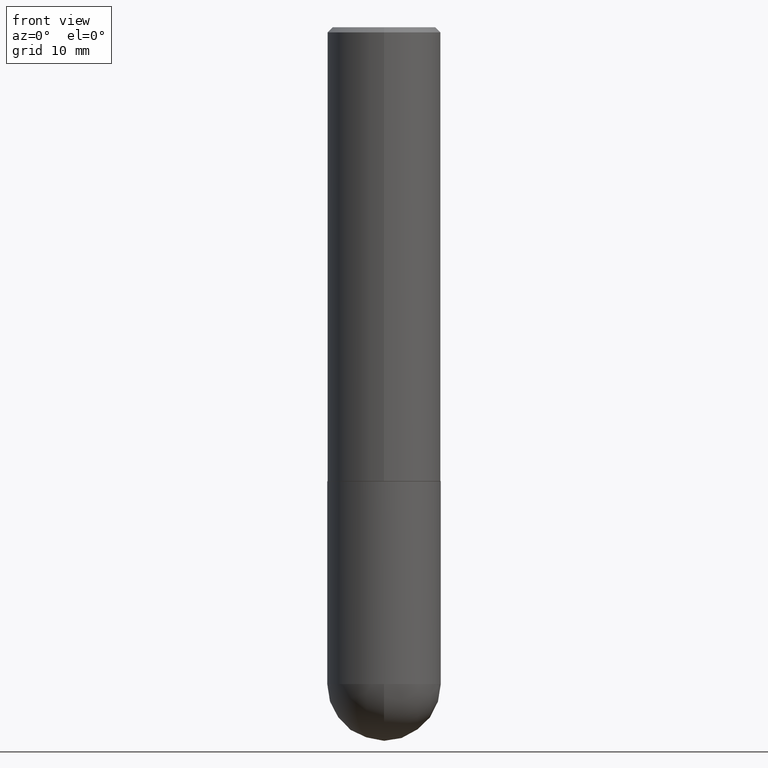
[diagram: clean part render]
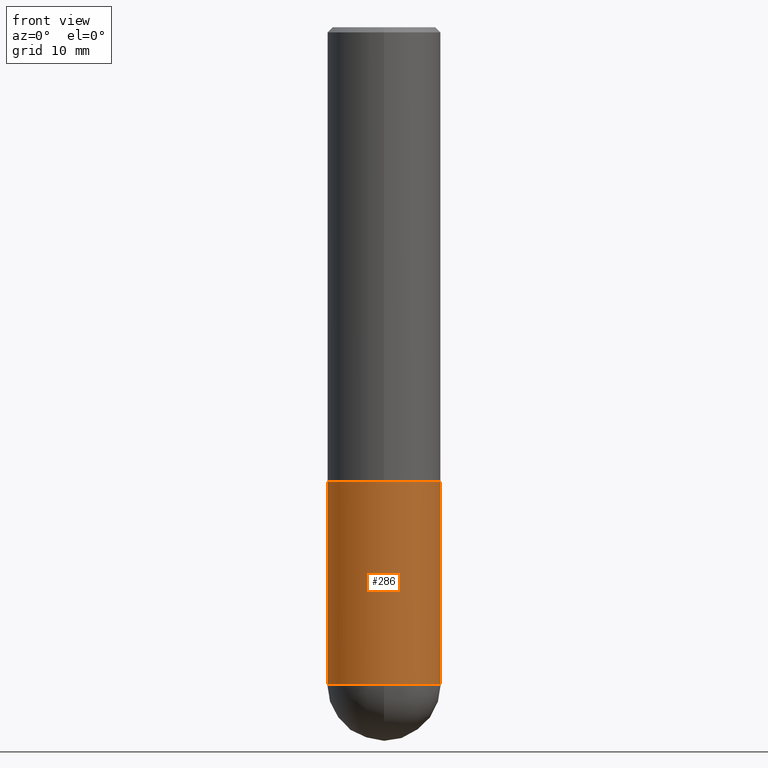
[diagram: same view with one face highlighted and labeled with its STEP entity id]
A machine part, front view. The second image highlights one B-rep face of the part: STEP entity #286.
In plain terms, the highlighted cylindrical surface (partial cylindrical patch) has radius 5.5562 mm, axis along (-0, 0, 1).
Its self-contained STEP definition (entity closure, byte-faithful):
#13 = ORIENTED_EDGE ( 'NONE', *, *, #335, .T. ) ;
#17 = CIRCLE ( 'NONE', #95, 0.2187500000000000000 ) ;
#18 = DIRECTION ( 'NONE',  ( -2.445468806185136597E-29, 3.491481338843145583E-15, 1.000000000000000000 ) ) ;
#25 = DIRECTION ( 'NONE',  ( 1.000000000000000000, -6.982962677686265133E-15, 0.000000000000000000 ) ) ;
#31 = CARTESIAN_POINT ( 'NONE',  ( -0.2187499999999999445, 1.554312234475218762E-15, -1.076017050993260482E-29 ) ) ;
#41 = CIRCLE ( 'NONE', #377, 0.2187499999999999445 ) ;
#42 = CARTESIAN_POINT ( 'NONE',  ( 0.2187499999999999445, -1.527523085743870449E-15, 1.066663669705360604E-29 ) ) ;
#49 = ORIENTED_EDGE ( 'NONE', *, *, #157, .F. ) ;
#51 = LINE ( 'NONE', #42, #129 ) ;
#52 = DIRECTION ( 'NONE',  ( -2.445468806185136597E-29, 3.491481338843145583E-15, 1.000000000000000000 ) ) ;
#54 = CYLINDRICAL_SURFACE ( 'NONE', #364, 0.2187499999999999445 ) ;
#83 = LINE ( 'NONE', #31, #321 ) ;
#95 = AXIS2_PLACEMENT_3D ( 'NONE', #329, #177, #143 ) ;
#101 = CARTESIAN_POINT ( 'NONE',  ( 0.2187500000000000000, -7.637615428719375514E-15, -1.750000000000000000 ) ) ;
#110 = EDGE_CURVE ( 'NONE', #254, #268, #301, .T. ) ;
#112 = CARTESIAN_POINT ( 'NONE',  ( 6.190092915656127011E-29, -8.837812138946710888E-15, -2.531250000000000000 ) ) ;
#114 = CARTESIAN_POINT ( 'NONE',  ( 0.2187499999999999445, -9.001475326704980594E-15, -2.531250000000000000 ) ) ;
#116 = DIRECTION ( 'NONE',  ( -2.445468806185136877E-29, 3.491481338843145188E-15, 1.000000000000000000 ) ) ;
#129 = VECTOR ( 'NONE', #167, 39.37007874015748143 ) ;
#136 = DIRECTION ( 'NONE',  ( 1.000000000000000000, -6.982962677686266711E-15, 4.876176775795935232E-29 ) ) ;
#143 = DIRECTION ( 'NONE',  ( 1.000000000000000000, -6.982962677686267499E-15, 0.000000000000000000 ) ) ;
#157 = EDGE_CURVE ( 'NONE', #254, #257, #83, .T. ) ;
#167 = DIRECTION ( 'NONE',  ( -2.445468806185136877E-29, 3.491481338843145188E-15, 1.000000000000000000 ) ) ;
#177 = DIRECTION ( 'NONE',  ( -2.445468806185136597E-29, 3.491481338843145583E-15, 1.000000000000000000 ) ) ;
#192 = ORIENTED_EDGE ( 'NONE', *, *, #212, .F. ) ;
#200 = DIRECTION ( 'NONE',  ( -2.445468806185136597E-29, 3.491481338843145583E-15, 1.000000000000000000 ) ) ;
#205 = ORIENTED_EDGE ( 'NONE', *, *, #110, .T. ) ;
#212 = EDGE_CURVE ( 'NONE', #257, #391, #17, .T. ) ;
#216 = CARTESIAN_POINT ( 'NONE',  ( 6.190092915656127011E-29, -8.837812138946710888E-15, -2.531250000000000000 ) ) ;
#227 = VERTEX_POINT ( 'NONE', #114 ) ;
#232 = CARTESIAN_POINT ( 'NONE',  ( -1.554312234475159203E-15, -0.2187500000000091871, -2.531249999999999556 ) ) ;
#237 = DIRECTION ( 'NONE',  ( 1.000000000000000000, -6.982962677686265133E-15, 0.000000000000000000 ) ) ;
#254 = VERTEX_POINT ( 'NONE', #270 ) ;
#257 = VERTEX_POINT ( 'NONE', #404 ) ;
#268 = VERTEX_POINT ( 'NONE', #232 ) ;
#270 = CARTESIAN_POINT ( 'NONE',  ( -0.2187499999999999445, -5.919640006485891384E-15, -2.531250000000000000 ) ) ;
#282 = EDGE_CURVE ( 'NONE', #227, #391, #51, .T. ) ;
#286 = ADVANCED_FACE ( 'NONE', ( #346 ), #54, .T. ) ;
#291 = ORIENTED_EDGE ( 'NONE', *, *, #282, .T. ) ;
#292 = CARTESIAN_POINT ( 'NONE',  ( 0.000000000000000000, 0.000000000000000000, 0.000000000000000000 ) ) ;
#301 = CIRCLE ( 'NONE', #357, 0.2187499999999999445 ) ;
#321 = VECTOR ( 'NONE', #116, 39.37007874015748143 ) ;
#329 = CARTESIAN_POINT ( 'NONE',  ( 4.279570410823988484E-29, -6.110092342975504671E-15, -1.750000000000000000 ) ) ;
#335 = EDGE_CURVE ( 'NONE', #268, #227, #41, .T. ) ;
#339 = EDGE_LOOP ( 'NONE', ( #49, #205, #13, #291, #192 ) ) ;
#346 = FACE_OUTER_BOUND ( 'NONE', #339, .T. ) ;
#357 = AXIS2_PLACEMENT_3D ( 'NONE', #216, #52, #25 ) ;
#364 = AXIS2_PLACEMENT_3D ( 'NONE', #292, #200, #136 ) ;
#377 = AXIS2_PLACEMENT_3D ( 'NONE', #112, #18, #237 ) ;
#391 = VERTEX_POINT ( 'NONE', #101 ) ;
#404 = CARTESIAN_POINT ( 'NONE',  ( -0.2187500000000000000, -5.919640006485889806E-15, -1.750000000000000000 ) ) ;